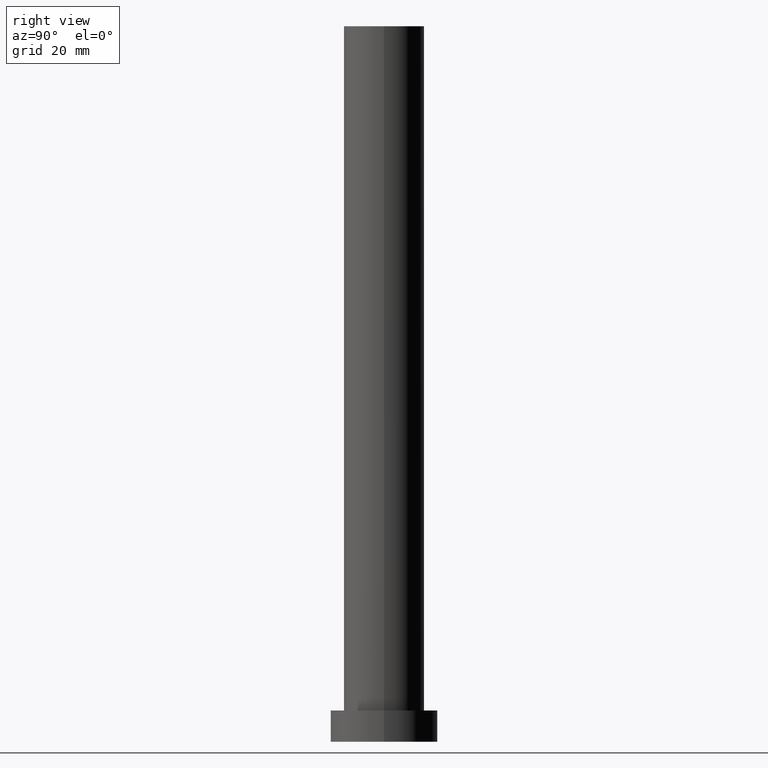
[diagram: clean part render]
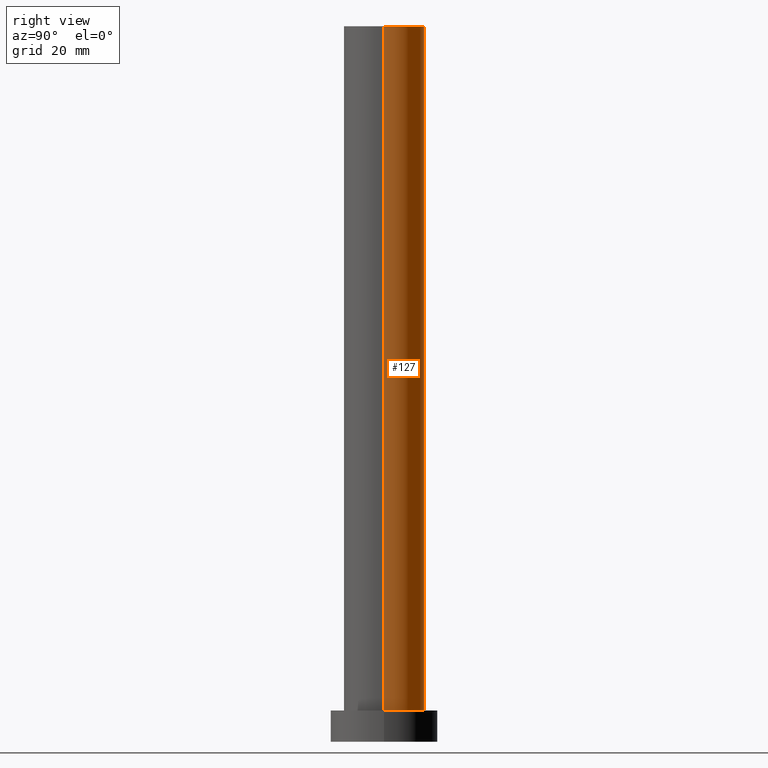
[diagram: same view with one face highlighted and labeled with its STEP entity id]
A machine part, right view. The second image highlights one B-rep face of the part: STEP entity #127.
In plain terms, the highlighted cylindrical surface (partial cylindrical patch) has radius 9 mm, axis along (-0, -0, -1).
Its self-contained STEP definition (entity closure, byte-faithful):
#2 = VERTEX_POINT ( 'NONE', #157 ) ;
#6 = ORIENTED_EDGE ( 'NONE', *, *, #76, .F. ) ;
#13 = CIRCLE ( 'NONE', #38, 9.000000000000000000 ) ;
#15 = DIRECTION ( 'NONE',  ( -0.000000000000000000, -0.000000000000000000, -1.000000000000000000 ) ) ;
#34 = VERTEX_POINT ( 'NONE', #88 ) ;
#37 = DIRECTION ( 'NONE',  ( -1.000000000000000000, 0.000000000000000000, 0.000000000000000000 ) ) ;
#38 = AXIS2_PLACEMENT_3D ( 'NONE', #173, #232, #124 ) ;
#39 = CARTESIAN_POINT ( 'NONE',  ( -9.000000000000000000, 0.000000000000000000, 7.000000000000000000 ) ) ;
#53 = AXIS2_PLACEMENT_3D ( 'NONE', #252, #71, #37 ) ;
#55 = FACE_OUTER_BOUND ( 'NONE', #183, .T. ) ;
#56 = EDGE_CURVE ( 'NONE', #241, #34, #78, .T. ) ;
#59 = VECTOR ( 'NONE', #188, 1000.000000000000000 ) ;
#64 = LINE ( 'NONE', #218, #59 ) ;
#71 = DIRECTION ( 'NONE',  ( -0.000000000000000000, -0.000000000000000000, -1.000000000000000000 ) ) ;
#72 = CARTESIAN_POINT ( 'NONE',  ( 0.000000000000000000, 0.000000000000000000, 7.000000000000000000 ) ) ;
#76 = EDGE_CURVE ( 'NONE', #241, #2, #13, .T. ) ;
#78 = LINE ( 'NONE', #143, #153 ) ;
#81 = ORIENTED_EDGE ( 'NONE', *, *, #112, .T. ) ;
#88 = CARTESIAN_POINT ( 'NONE',  ( 9.000000000000000000, 1.102182119232617714E-15, 7.000000000000000000 ) ) ;
#99 = DIRECTION ( 'NONE',  ( 0.000000000000000000, 0.000000000000000000, 1.000000000000000000 ) ) ;
#100 = AXIS2_PLACEMENT_3D ( 'NONE', #72, #99, #231 ) ;
#103 = CIRCLE ( 'NONE', #100, 9.000000000000000000 ) ;
#112 = EDGE_CURVE ( 'NONE', #34, #119, #103, .T. ) ;
#119 = VERTEX_POINT ( 'NONE', #39 ) ;
#124 = DIRECTION ( 'NONE',  ( 1.000000000000000000, 0.000000000000000000, 0.000000000000000000 ) ) ;
#127 = ADVANCED_FACE ( 'NONE', ( #55 ), #228, .T. ) ;
#136 = CARTESIAN_POINT ( 'NONE',  ( 9.000000000000000000, 1.102182119232617714E-15, 160.0000000000000000 ) ) ;
#143 = CARTESIAN_POINT ( 'NONE',  ( 9.000000000000000000, 1.102182119232617714E-15, 160.0000000000000000 ) ) ;
#153 = VECTOR ( 'NONE', #15, 1000.000000000000000 ) ;
#157 = CARTESIAN_POINT ( 'NONE',  ( -9.000000000000000000, 0.000000000000000000, 160.0000000000000000 ) ) ;
#161 = ORIENTED_EDGE ( 'NONE', *, *, #251, .F. ) ;
#173 = CARTESIAN_POINT ( 'NONE',  ( 0.000000000000000000, 0.000000000000000000, 160.0000000000000000 ) ) ;
#183 = EDGE_LOOP ( 'NONE', ( #6, #190, #81, #161 ) ) ;
#188 = DIRECTION ( 'NONE',  ( -0.000000000000000000, -0.000000000000000000, -1.000000000000000000 ) ) ;
#190 = ORIENTED_EDGE ( 'NONE', *, *, #56, .T. ) ;
#218 = CARTESIAN_POINT ( 'NONE',  ( -9.000000000000000000, 0.000000000000000000, 160.0000000000000000 ) ) ;
#228 = CYLINDRICAL_SURFACE ( 'NONE', #53, 9.000000000000000000 ) ;
#231 = DIRECTION ( 'NONE',  ( 1.000000000000000000, 0.000000000000000000, 0.000000000000000000 ) ) ;
#232 = DIRECTION ( 'NONE',  ( 0.000000000000000000, 0.000000000000000000, 1.000000000000000000 ) ) ;
#241 = VERTEX_POINT ( 'NONE', #136 ) ;
#251 = EDGE_CURVE ( 'NONE', #2, #119, #64, .T. ) ;
#252 = CARTESIAN_POINT ( 'NONE',  ( 0.000000000000000000, 0.000000000000000000, 160.0000000000000000 ) ) ;